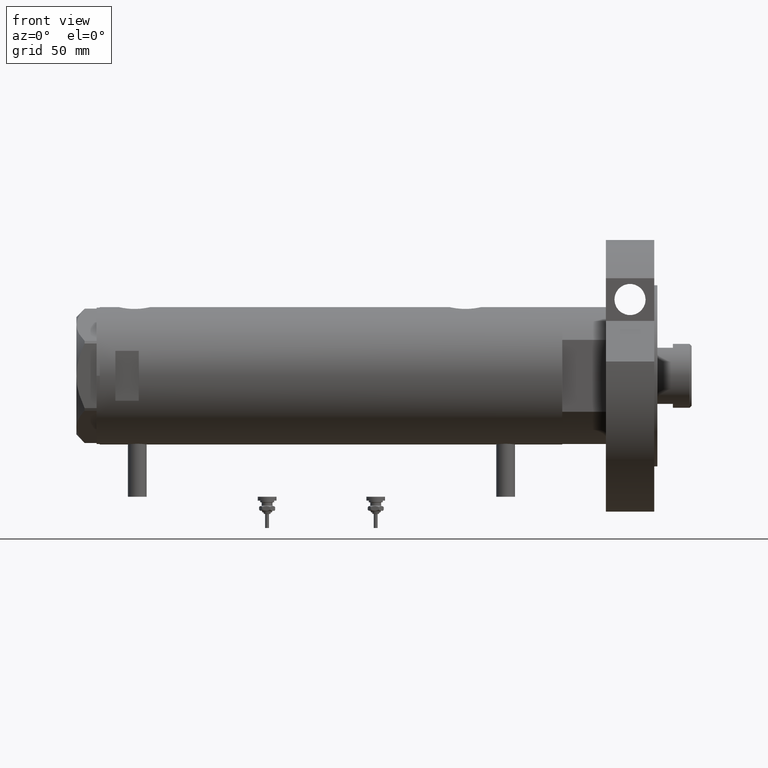
[diagram: clean part render]
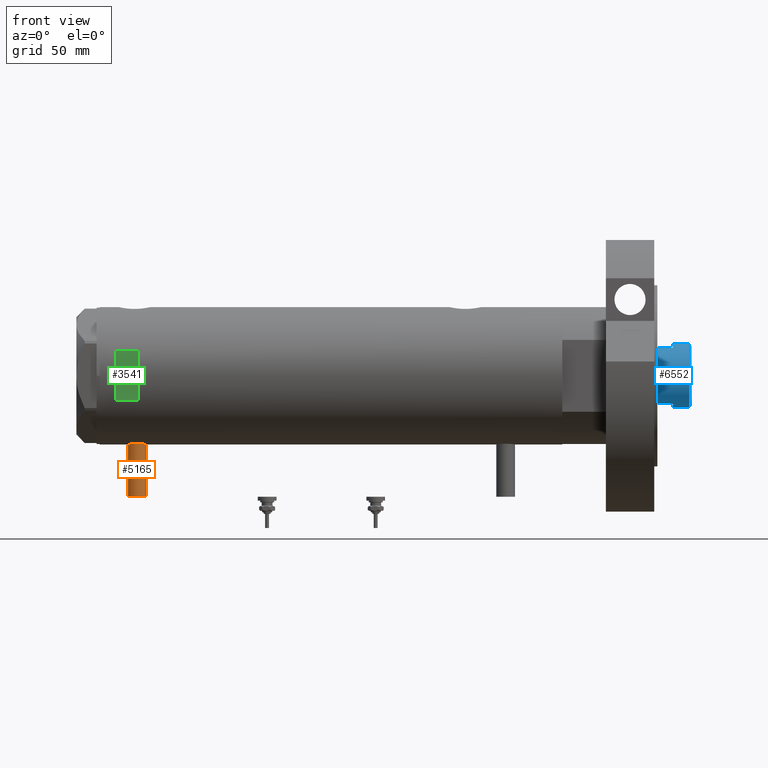
[diagram: same view with three faces highlighted in distinct colors, each labeled with its STEP entity id]
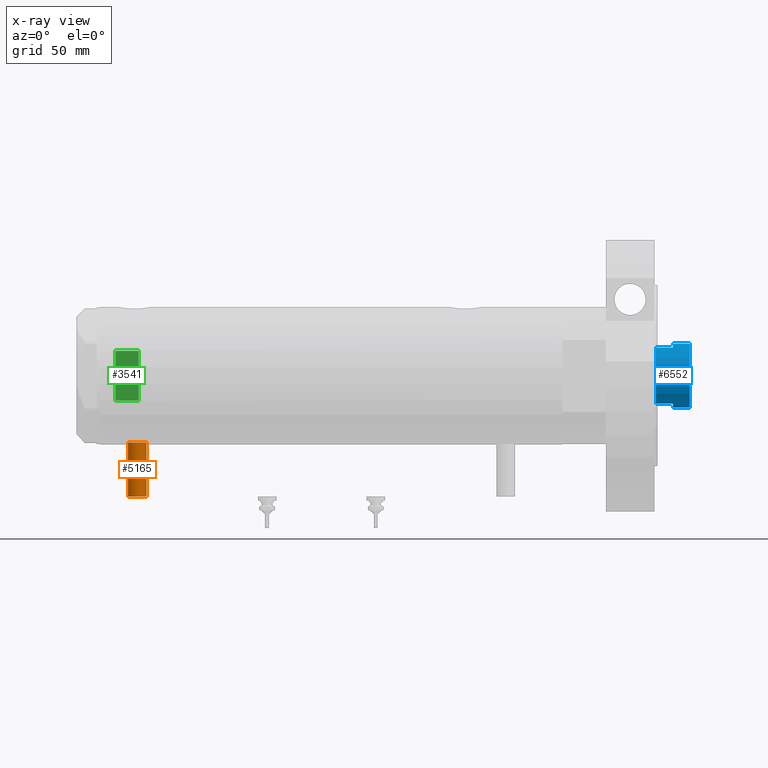
[diagram: x-ray of the same camera — body ghosted, the three highlighted faces saturated]
A machine part, front view with three faces highlighted in distinct colors.
The next image is the same camera in x-ray (body ghosted, the three faces saturated) — at least one of them is partly hidden behind the body in this view.
Their STEP definitions:

[orange] entity #5165 — the highlighted cylindrical surface (edge-blend (fillet) strip) has radius 6 mm, axis along (0, 0, 1).
#72 = AXIS2_PLACEMENT_3D ( 'NONE', #4814, #7164, #6593 ) ;
#357 = CYLINDRICAL_SURFACE ( 'NONE', #5684, 6.000000000000019540 ) ;
#363 = CARTESIAN_POINT ( 'NONE',  ( -42.79999999999999716, 7.347880794884152277E-16, 130.2000000000000171 ) ) ;
#420 = ORIENTED_EDGE ( 'NONE', *, *, #7464, .F. ) ;
#633 = DIRECTION ( 'NONE',  ( 1.000000000000000000, -0.000000000000000000, -0.000000000000000000 ) ) ;
#1216 = EDGE_CURVE ( 'NONE', #7058, #7101, #1729, .T. ) ;
#1390 = EDGE_LOOP ( 'NONE', ( #1765, #420, #4976, #2850 ) ) ;
#1401 = CIRCLE ( 'NONE', #72, 6.000000000000005329 ) ;
#1729 = LINE ( 'NONE', #3368, #6017 ) ;
#1765 = ORIENTED_EDGE ( 'NONE', *, *, #1216, .F. ) ;
#1798 = AXIS2_PLACEMENT_3D ( 'NONE', #4444, #5476, #2579 ) ;
#1975 = CARTESIAN_POINT ( 'NONE',  ( -77.50000000000000000, 0.000000000000000000, 124.2000000000000028 ) ) ;
#2579 = DIRECTION ( 'NONE',  ( 0.000000000000000000, 0.000000000000000000, 1.000000000000000000 ) ) ;
#2661 = DIRECTION ( 'NONE',  ( 0.000000000000000000, 0.000000000000000000, -1.000000000000000000 ) ) ;
#2850 = ORIENTED_EDGE ( 'NONE', *, *, #4376, .T. ) ;
#3368 = CARTESIAN_POINT ( 'NONE',  ( -77.50000000000000000, 7.347880794884138472E-16, 130.2000000000000171 ) ) ;
#3376 = CIRCLE ( 'NONE', #1798, 6.000000000000005329 ) ;
#3629 = CARTESIAN_POINT ( 'NONE',  ( -77.50000000000000000, 0.000000000000000000, 118.1999999999999886 ) ) ;
#3821 = VERTEX_POINT ( 'NONE', #4201 ) ;
#4201 = CARTESIAN_POINT ( 'NONE',  ( -77.50000000000000000, 0.000000000000000000, 118.1999999999999886 ) ) ;
#4202 = LINE ( 'NONE', #3629, #6698 ) ;
#4291 = DIRECTION ( 'NONE',  ( 1.000000000000000000, -0.000000000000000000, -0.000000000000000000 ) ) ;
#4376 = EDGE_CURVE ( 'NONE', #4900, #7101, #1401, .T. ) ;
#4444 = CARTESIAN_POINT ( 'NONE',  ( -77.50000000000000000, 0.000000000000000000, 124.2000000000000028 ) ) ;
#4767 = DIRECTION ( 'NONE',  ( 1.000000000000000000, -0.000000000000000000, -0.000000000000000000 ) ) ;
#4814 = CARTESIAN_POINT ( 'NONE',  ( -42.79999999999999716, 0.000000000000000000, 124.2000000000000028 ) ) ;
#4900 = VERTEX_POINT ( 'NONE', #6617 ) ;
#4976 = ORIENTED_EDGE ( 'NONE', *, *, #6451, .T. ) ;
#5165 = ADVANCED_FACE ( 'NONE', ( #7212 ), #357, .T. ) ;
#5476 = DIRECTION ( 'NONE',  ( -1.000000000000000000, 0.000000000000000000, 0.000000000000000000 ) ) ;
#5684 = AXIS2_PLACEMENT_3D ( 'NONE', #1975, #4291, #2661 ) ;
#6017 = VECTOR ( 'NONE', #633, 1000.000000000000000 ) ;
#6451 = EDGE_CURVE ( 'NONE', #3821, #4900, #4202, .T. ) ;
#6593 = DIRECTION ( 'NONE',  ( 0.000000000000000000, 0.000000000000000000, 1.000000000000000000 ) ) ;
#6617 = CARTESIAN_POINT ( 'NONE',  ( -42.79999999999999716, 0.000000000000000000, 118.1999999999999886 ) ) ;
#6698 = VECTOR ( 'NONE', #4767, 1000.000000000000000 ) ;
#7058 = VERTEX_POINT ( 'NONE', #7374 ) ;
#7101 = VERTEX_POINT ( 'NONE', #363 ) ;
#7164 = DIRECTION ( 'NONE',  ( -1.000000000000000000, 0.000000000000000000, 0.000000000000000000 ) ) ;
#7212 = FACE_OUTER_BOUND ( 'NONE', #1390, .T. ) ;
#7374 = CARTESIAN_POINT ( 'NONE',  ( -77.50000000000000000, 7.347880794884152277E-16, 130.2000000000000171 ) ) ;
#7464 = EDGE_CURVE ( 'NONE', #3821, #7058, #3376, .T. ) ;

[blue] entity #6552 — the highlighted cylindrical surface (edge-blend (fillet) strip) has radius 20.5 mm, axis along (-1, -0, 0).
#306 = CIRCLE ( 'NONE', #6876, 20.50000000000000000 ) ;
#329 = DIRECTION ( 'NONE',  ( -0.000000000000000000, -0.000000000000000000, -1.000000000000000000 ) ) ;
#386 = EDGE_LOOP ( 'NONE', ( #3033, #5385, #2727, #1655, #4040, #6059, #3341, #4732 ) ) ;
#546 = VERTEX_POINT ( 'NONE', #5373 ) ;
#662 = EDGE_CURVE ( 'NONE', #1853, #6932, #872, .T. ) ;
#872 = LINE ( 'NONE', #2170, #5643 ) ;
#970 = DIRECTION ( 'NONE',  ( -0.000000000000000000, -0.000000000000000000, -1.000000000000000000 ) ) ;
#1169 = CARTESIAN_POINT ( 'NONE',  ( -20.50000000000000355, 0.000000000000000000, 351.8999999999999773 ) ) ;
#1441 = EDGE_CURVE ( 'NONE', #1853, #6215, #6998, .T. ) ;
#1490 = CIRCLE ( 'NONE', #7204, 20.50000000000000355 ) ;
#1496 = DIRECTION ( 'NONE',  ( 1.000000000000000000, 0.000000000000000000, 0.000000000000000000 ) ) ;
#1519 = DIRECTION ( 'NONE',  ( -0.000000000000000000, -0.000000000000000000, -1.000000000000000000 ) ) ;
#1536 = CARTESIAN_POINT ( 'NONE',  ( 17.97852886083843060, -9.849999999999994316, 341.3000000000000114 ) ) ;
#1581 = CARTESIAN_POINT ( 'NONE',  ( 0.000000000000000000, 0.000000000000000000, 341.3000000000000114 ) ) ;
#1655 = ORIENTED_EDGE ( 'NONE', *, *, #2255, .T. ) ;
#1766 = EDGE_CURVE ( 'NONE', #7273, #6932, #306, .T. ) ;
#1853 = VERTEX_POINT ( 'NONE', #5297 ) ;
#1914 = DIRECTION ( 'NONE',  ( 0.000000000000000000, 0.000000000000000000, -1.000000000000000000 ) ) ;
#2035 = CYLINDRICAL_SURFACE ( 'NONE', #3638, 20.50000000000000355 ) ;
#2170 = CARTESIAN_POINT ( 'NONE',  ( 20.50000000000000355, 2.510525938252074481E-15, 341.3000000000000114 ) ) ;
#2183 = CARTESIAN_POINT ( 'NONE',  ( 17.97852886083843060, -9.849999999999994316, 341.3000000000000114 ) ) ;
#2234 = LINE ( 'NONE', #4542, #3001 ) ;
#2255 = EDGE_CURVE ( 'NONE', #5802, #546, #5168, .T. ) ;
#2380 = EDGE_CURVE ( 'NONE', #7273, #4734, #7301, .T. ) ;
#2550 = DIRECTION ( 'NONE',  ( 0.000000000000000000, 0.000000000000000000, 1.000000000000000000 ) ) ;
#2726 = AXIS2_PLACEMENT_3D ( 'NONE', #5933, #1914, #4229 ) ;
#2727 = ORIENTED_EDGE ( 'NONE', *, *, #4937, .T. ) ;
#2781 = DIRECTION ( 'NONE',  ( 0.000000000000000000, 0.000000000000000000, 1.000000000000000000 ) ) ;
#3001 = VECTOR ( 'NONE', #6889, 1000.000000000000000 ) ;
#3033 = ORIENTED_EDGE ( 'NONE', *, *, #662, .F. ) ;
#3341 = ORIENTED_EDGE ( 'NONE', *, *, #2380, .F. ) ;
#3358 = VECTOR ( 'NONE', #6208, 1000.000000000000000 ) ;
#3386 = VERTEX_POINT ( 'NONE', #3948 ) ;
#3484 = CARTESIAN_POINT ( 'NONE',  ( 17.97852886083843060, -9.850000000000019185, 330.2999999999999545 ) ) ;
#3638 = AXIS2_PLACEMENT_3D ( 'NONE', #1581, #329, #6089 ) ;
#3732 = DIRECTION ( 'NONE',  ( 0.000000000000000000, 0.000000000000000000, 1.000000000000000000 ) ) ;
#3819 = LINE ( 'NONE', #6165, #3358 ) ;
#3948 = CARTESIAN_POINT ( 'NONE',  ( -17.97852886083842350, -9.850000000000029843, 330.2999999999999545 ) ) ;
#4040 = ORIENTED_EDGE ( 'NONE', *, *, #6353, .T. ) ;
#4229 = DIRECTION ( 'NONE',  ( 1.000000000000000000, 0.000000000000000000, 0.000000000000000000 ) ) ;
#4296 = CARTESIAN_POINT ( 'NONE',  ( 0.000000000000000000, 0.000000000000000000, 330.2999999999999545 ) ) ;
#4542 = CARTESIAN_POINT ( 'NONE',  ( -17.97852886083842350, -9.850000000000001421, 341.3000000000000114 ) ) ;
#4588 = CARTESIAN_POINT ( 'NONE',  ( -20.50000000000000000, 0.000000000000000000, 341.3000000000000114 ) ) ;
#4732 = ORIENTED_EDGE ( 'NONE', *, *, #1766, .T. ) ;
#4734 = VERTEX_POINT ( 'NONE', #3484 ) ;
#4937 = EDGE_CURVE ( 'NONE', #6215, #5802, #3819, .T. ) ;
#5109 = DIRECTION ( 'NONE',  ( 1.000000000000000000, 0.000000000000000000, 0.000000000000000000 ) ) ;
#5168 = CIRCLE ( 'NONE', #6410, 20.50000000000000000 ) ;
#5297 = CARTESIAN_POINT ( 'NONE',  ( 20.50000000000000355, 2.510525938252074481E-15, 351.8999999999999773 ) ) ;
#5373 = CARTESIAN_POINT ( 'NONE',  ( -17.97852886083842705, -9.849999999999996092, 341.3000000000000114 ) ) ;
#5385 = ORIENTED_EDGE ( 'NONE', *, *, #1441, .T. ) ;
#5643 = VECTOR ( 'NONE', #1519, 1000.000000000000000 ) ;
#5802 = VERTEX_POINT ( 'NONE', #4588 ) ;
#5809 = CARTESIAN_POINT ( 'NONE',  ( 0.000000000000000000, 0.000000000000000000, 341.3000000000000114 ) ) ;
#5916 = VECTOR ( 'NONE', #970, 1000.000000000000000 ) ;
#5933 = CARTESIAN_POINT ( 'NONE',  ( 0.000000000000000000, 0.000000000000000000, 351.8999999999999773 ) ) ;
#6059 = ORIENTED_EDGE ( 'NONE', *, *, #7107, .T. ) ;
#6080 = CARTESIAN_POINT ( 'NONE',  ( 0.000000000000000000, 0.000000000000000000, 341.3000000000000114 ) ) ;
#6089 = DIRECTION ( 'NONE',  ( -1.000000000000000000, 0.000000000000000000, 0.000000000000000000 ) ) ;
#6165 = CARTESIAN_POINT ( 'NONE',  ( -20.50000000000000355, 0.000000000000000000, 341.3000000000000114 ) ) ;
#6208 = DIRECTION ( 'NONE',  ( -0.000000000000000000, -0.000000000000000000, -1.000000000000000000 ) ) ;
#6215 = VERTEX_POINT ( 'NONE', #1169 ) ;
#6353 = EDGE_CURVE ( 'NONE', #546, #3386, #2234, .T. ) ;
#6410 = AXIS2_PLACEMENT_3D ( 'NONE', #6080, #3732, #1496 ) ;
#6504 = CARTESIAN_POINT ( 'NONE',  ( 20.50000000000000000, 2.510525938252074481E-15, 341.3000000000000114 ) ) ;
#6552 = ADVANCED_FACE ( 'NONE', ( #7309 ), #2035, .T. ) ;
#6725 = DIRECTION ( 'NONE',  ( 1.000000000000000000, 0.000000000000000000, 0.000000000000000000 ) ) ;
#6876 = AXIS2_PLACEMENT_3D ( 'NONE', #5809, #2781, #5109 ) ;
#6889 = DIRECTION ( 'NONE',  ( -0.000000000000000000, -0.000000000000000000, -1.000000000000000000 ) ) ;
#6932 = VERTEX_POINT ( 'NONE', #6504 ) ;
#6998 = CIRCLE ( 'NONE', #2726, 20.50000000000000355 ) ;
#7107 = EDGE_CURVE ( 'NONE', #3386, #4734, #1490, .T. ) ;
#7204 = AXIS2_PLACEMENT_3D ( 'NONE', #4296, #2550, #6725 ) ;
#7273 = VERTEX_POINT ( 'NONE', #2183 ) ;
#7301 = LINE ( 'NONE', #1536, #5916 ) ;
#7309 = FACE_OUTER_BOUND ( 'NONE', #386, .T. ) ;

[green] entity #3541 — the highlighted planar face has unit normal (-0, 1, 0).
#432 = EDGE_CURVE ( 'NONE', #2955, #3297, #7457, .T. ) ;
#608 = VECTOR ( 'NONE', #6956, 1000.000000000000000 ) ;
#1399 = VERTEX_POINT ( 'NONE', #2974 ) ;
#1434 = DIRECTION ( 'NONE',  ( 0.000000000000000000, 1.000000000000000000, 0.000000000000000000 ) ) ;
#1570 = EDGE_LOOP ( 'NONE', ( #5656, #6364, #4271, #3331 ) ) ;
#1866 = VECTOR ( 'NONE', #6805, 1000.000000000000000 ) ;
#2260 = CARTESIAN_POINT ( 'NONE',  ( 15.96871942267132027, -40.99999999999999289, -148.1999999999999886 ) ) ;
#2352 = LINE ( 'NONE', #5208, #2746 ) ;
#2746 = VECTOR ( 'NONE', #6376, 1000.000000000000000 ) ;
#2755 = VERTEX_POINT ( 'NONE', #3240 ) ;
#2880 = VECTOR ( 'NONE', #5729, 1000.000000000000000 ) ;
#2893 = CARTESIAN_POINT ( 'NONE',  ( -15.96871942267132027, -40.99999999999999289, -148.1999999999999886 ) ) ;
#2955 = VERTEX_POINT ( 'NONE', #3506 ) ;
#2974 = CARTESIAN_POINT ( 'NONE',  ( -15.96871942267132027, -40.99999999999999289, 138.1999999999999886 ) ) ;
#3240 = CARTESIAN_POINT ( 'NONE',  ( -15.96871942267132027, -40.99999999999999289, 123.1999999999999744 ) ) ;
#3297 = VERTEX_POINT ( 'NONE', #4026 ) ;
#3331 = ORIENTED_EDGE ( 'NONE', *, *, #6780, .F. ) ;
#3399 = EDGE_CURVE ( 'NONE', #2755, #2955, #2352, .T. ) ;
#3506 = CARTESIAN_POINT ( 'NONE',  ( 15.96871942267132027, -40.99999999999999289, 123.1999999999999744 ) ) ;
#3541 = ADVANCED_FACE ( 'NONE', ( #6821 ), #4357, .F. ) ;
#4026 = CARTESIAN_POINT ( 'NONE',  ( 15.96871942267132027, -40.99999999999999289, 138.1999999999999886 ) ) ;
#4271 = ORIENTED_EDGE ( 'NONE', *, *, #432, .T. ) ;
#4357 = PLANE ( 'NONE',  #5680 ) ;
#4394 = DIRECTION ( 'NONE',  ( 0.000000000000000000, -0.000000000000000000, 1.000000000000000000 ) ) ;
#4574 = LINE ( 'NONE', #6843, #608 ) ;
#5208 = CARTESIAN_POINT ( 'NONE',  ( -44.00000000000000000, -40.99999999999999289, 123.1999999999999886 ) ) ;
#5644 = LINE ( 'NONE', #2893, #2880 ) ;
#5656 = ORIENTED_EDGE ( 'NONE', *, *, #7322, .T. ) ;
#5680 = AXIS2_PLACEMENT_3D ( 'NONE', #6132, #1434, #4394 ) ;
#5729 = DIRECTION ( 'NONE',  ( -0.000000000000000000, -0.000000000000000000, -1.000000000000000000 ) ) ;
#6132 = CARTESIAN_POINT ( 'NONE',  ( -44.00000000000000000, -40.99999999999999289, 138.1999999999999886 ) ) ;
#6364 = ORIENTED_EDGE ( 'NONE', *, *, #3399, .T. ) ;
#6376 = DIRECTION ( 'NONE',  ( 1.000000000000000000, -0.000000000000000000, -0.000000000000000000 ) ) ;
#6780 = EDGE_CURVE ( 'NONE', #1399, #3297, #4574, .T. ) ;
#6805 = DIRECTION ( 'NONE',  ( 0.000000000000000000, 0.000000000000000000, 1.000000000000000000 ) ) ;
#6821 = FACE_OUTER_BOUND ( 'NONE', #1570, .T. ) ;
#6843 = CARTESIAN_POINT ( 'NONE',  ( -44.00000000000000000, -40.99999999999999289, 138.1999999999999886 ) ) ;
#6956 = DIRECTION ( 'NONE',  ( 1.000000000000000000, -0.000000000000000000, -0.000000000000000000 ) ) ;
#7322 = EDGE_CURVE ( 'NONE', #1399, #2755, #5644, .T. ) ;
#7457 = LINE ( 'NONE', #2260, #1866 ) ;